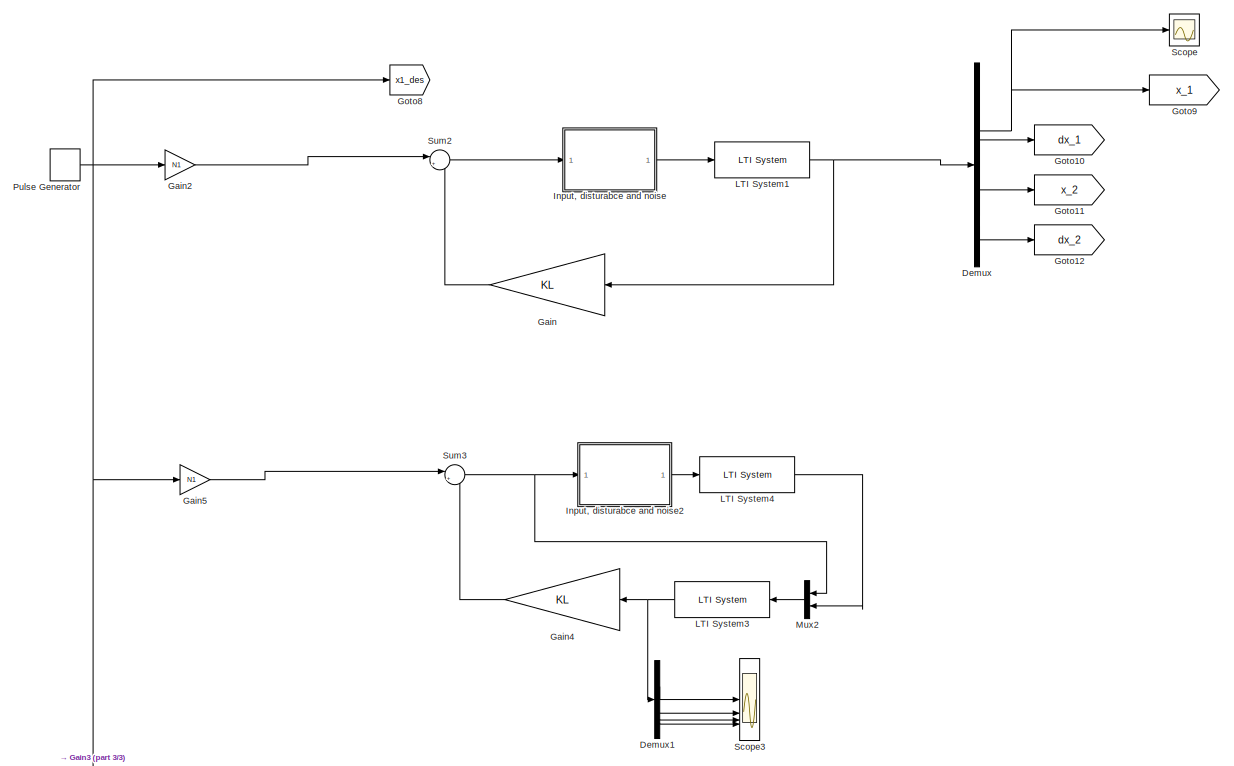
[diagram: root canvas - part 1/3, full width, top band]
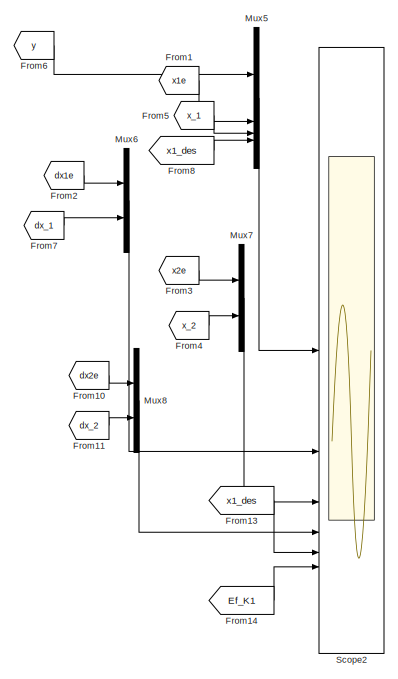
[diagram: root canvas - part 2/3, top right region]
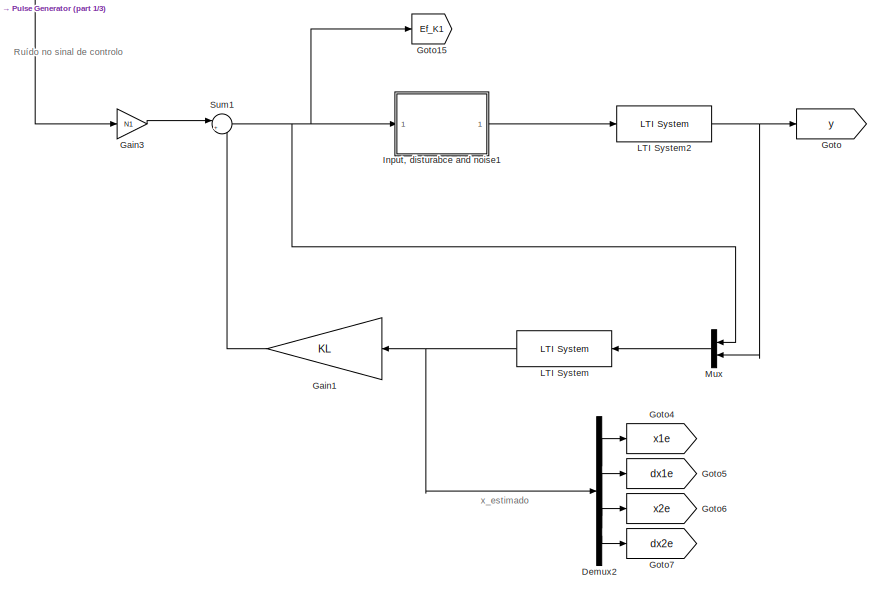
[diagram: root canvas - part 3/3, bottom left region]
MODEL slx_409fb0eced6b
KIND model
CONFIG AbsTol = auto
CONFIG EnableMultiTasking = off
CONFIG FixedStep = auto
CONFIG MaxStep = 0.01
CONFIG MinStep = auto
CONFIG RelTol = 1e-3
CONFIG SampleTimeConstraint = Unconstrained
CONFIG SolverName = VariableStepAuto
CONFIG StartTime = 0.0
CONFIG StopTime = 10
BLOCK [Demux] Demux
BLOCK [Demux] Demux1
BLOCK [Demux] Demux2
BLOCK [From] From1
  GotoTag = x1e
BLOCK [From] From10
  GotoTag = dx2e
BLOCK [From] From11
  GotoTag = dx_2
BLOCK [From] From13
  GotoTag = x1_des
BLOCK [From] From14
  GotoTag = Ef_K1
BLOCK [From] From2
  GotoTag = dx1e
BLOCK [From] From3
  GotoTag = x2e
BLOCK [From] From4
  GotoTag = x_2
BLOCK [From] From5
  GotoTag = x_1
BLOCK [From] From6
  GotoTag = y
BLOCK [From] From7
  GotoTag = dx_1
BLOCK [From] From8
  GotoTag = x1_des
BLOCK [Gain] Gain
  Gain = KL
  Multiplication = Matrix(K*u) (u vector)
  NameLocation = top
BLOCK [Gain] Gain1
  Gain = KL
  Multiplication = Matrix(K*u) (u vector)
  NameLocation = top
BLOCK [Gain] Gain2
  Gain = N1
BLOCK [Gain] Gain3
  Gain = N1
BLOCK [Gain] Gain4
  Gain = KL
  Multiplication = Matrix(K*u) (u vector)
  NameLocation = top
BLOCK [Gain] Gain5
  Gain = N1
BLOCK [Goto] Goto
  GotoTag = y
BLOCK [Goto] Goto10
  GotoTag = dx_1
BLOCK [Goto] Goto11
  GotoTag = x_2
BLOCK [Goto] Goto12
  GotoTag = dx_2
BLOCK [Goto] Goto15
  GotoTag = Ef_K1
BLOCK [Goto] Goto4
  GotoTag = x1e
BLOCK [Goto] Goto5
  GotoTag = dx1e
BLOCK [Goto] Goto6
  GotoTag = x2e
BLOCK [Goto] Goto7
  GotoTag = dx2e
BLOCK [Goto] Goto8
  GotoTag = x1_des
BLOCK [Goto] Goto9
  GotoTag = x_1
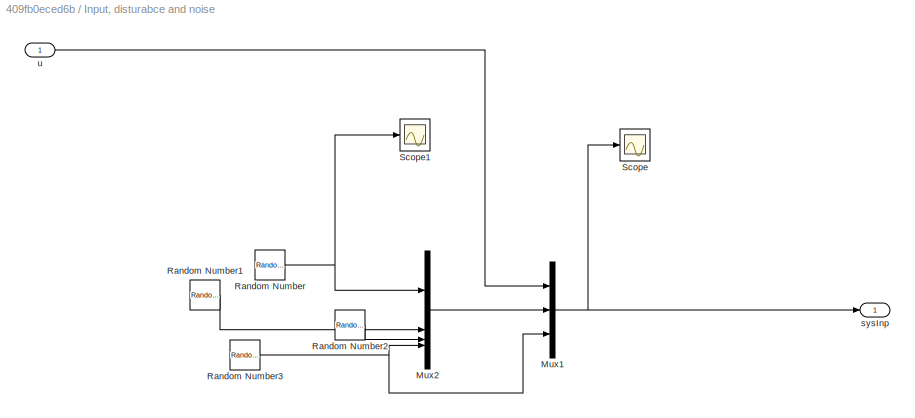
BLOCK [SubSystem] Input, disturabce and noise
BLOCK [Mux] Input, disturabce and noise/Mux1
  DisplayOption = bar
  Inputs = 3
BLOCK [Mux] Input, disturabce and noise/Mux2
  DisplayOption = bar
BLOCK [RandomNumber] Input, disturabce and noise/Random Number
  SampleTime = 0.02
  Variance = noiseVar
BLOCK [RandomNumber] Input, disturabce and noise/Random Number1
  SampleTime = 0.02
  Variance = noiseVar
BLOCK [RandomNumber] Input, disturabce and noise/Random Number2
  SampleTime = 0.02
  Variance = noiseVar
BLOCK [RandomNumber] Input, disturabce and noise/Random Number3
  SampleTime = 0.02
  Variance = noiseVar
BLOCK [Scope] Input, disturabce and noise/Scope
  Floating = off
  NumInputPorts = 1
  ScopeSpecificationString = Simulink.scopes.TimeScopeBlockCfg('CurrentConfiguration', extmgr.ConfigurationSet(extmgr.Configuration('Core','General UI',true),extmgr.Configuration('Core','Source UI',true),extmgr.Configuration('Sources','WiredSimulink',true,'DataLoggingVariableName','ScopeData1'),extmgr.Configuration('Visuals','Time Domain',true,'SerializedDisplays',{struct('MinYLimReal','-48.30284','MaxYLimReal','59.3347','YLa...<+1564ch>
BLOCK [Scope] Input, disturabce and noise/Scope1
  Floating = off
  NumInputPorts = 1
  ScopeSpecificationString = Simulink.scopes.TimeScopeBlockCfg('CurrentConfiguration', extmgr.ConfigurationSet(extmgr.Configuration('Core','General UI',true),extmgr.Configuration('Core','Source UI',true),extmgr.Configuration('Sources','WiredSimulink',true,'DataLoggingVariableName','ScopeData3'),extmgr.Configuration('Visuals','Time Domain',true,'SerializedDisplays',{struct('MinYLimReal','-1.14876','MaxYLimReal','1.25443','YLab...<+1490ch>
BLOCK [Outport] Input, disturabce and noise/sysInp
BLOCK [Inport] Input, disturabce and noise/u
  IconDisplay = Port number and signal name
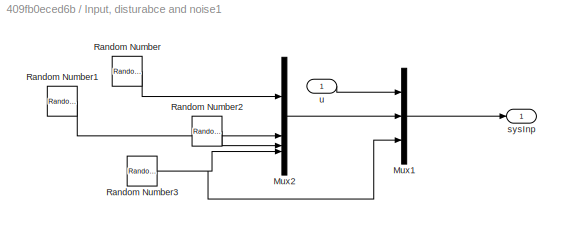
BLOCK [SubSystem] Input, disturabce and noise1
BLOCK [Mux] Input, disturabce and noise1/Mux1
  DisplayOption = bar
  Inputs = 3
BLOCK [Mux] Input, disturabce and noise1/Mux2
  DisplayOption = bar
BLOCK [RandomNumber] Input, disturabce and noise1/Random Number
  SampleTime = 0.02
  Variance = noiseVar
BLOCK [RandomNumber] Input, disturabce and noise1/Random Number1
  SampleTime = 0.02
  Variance = noiseVar
BLOCK [RandomNumber] Input, disturabce and noise1/Random Number2
  SampleTime = 0.02
  Variance = noiseVar
BLOCK [RandomNumber] Input, disturabce and noise1/Random Number3
  SampleTime = 0.02
  Variance = noiseVar
BLOCK [Outport] Input, disturabce and noise1/sysInp
BLOCK [Inport] Input, disturabce and noise1/u
  IconDisplay = Port number and signal name
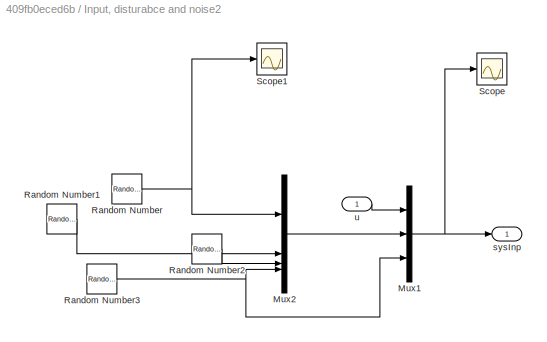
BLOCK [SubSystem] Input, disturabce and noise2
BLOCK [Mux] Input, disturabce and noise2/Mux1
  DisplayOption = bar
  Inputs = 3
BLOCK [Mux] Input, disturabce and noise2/Mux2
  DisplayOption = bar
BLOCK [RandomNumber] Input, disturabce and noise2/Random Number
  SampleTime = 0.02
  Variance = noiseVar
BLOCK [RandomNumber] Input, disturabce and noise2/Random Number1
  SampleTime = 0.02
  Variance = noiseVar
BLOCK [RandomNumber] Input, disturabce and noise2/Random Number2
  SampleTime = 0.02
  Variance = noiseVar
BLOCK [RandomNumber] Input, disturabce and noise2/Random Number3
  SampleTime = 0.02
  Variance = noiseVar
BLOCK [Scope] Input, disturabce and noise2/Scope
  Floating = off
  NumInputPorts = 1
  ScopeSpecificationString = Simulink.scopes.TimeScopeBlockCfg('CurrentConfiguration', extmgr.ConfigurationSet(extmgr.Configuration('Core','General UI',true),extmgr.Configuration('Core','Source UI',true),extmgr.Configuration('Sources','WiredSimulink',true,'DataLoggingVariableName','ScopeData1'),extmgr.Configuration('Visuals','Time Domain',true,'SerializedDisplays',{struct('MinYLimReal','-48.3018','MaxYLimReal','59.32879','YLa...<+1566ch>
BLOCK [Scope] Input, disturabce and noise2/Scope1
  Floating = off
  NumInputPorts = 1
  ScopeSpecificationString = Simulink.scopes.TimeScopeBlockCfg('CurrentConfiguration', extmgr.ConfigurationSet(extmgr.Configuration('Core','General UI',true),extmgr.Configuration('Core','Source UI',true),extmgr.Configuration('Sources','WiredSimulink',true,'DataLoggingVariableName','ScopeData3'),extmgr.Configuration('Visuals','Time Domain',true,'SerializedDisplays',{struct('MinYLimReal','-1.00000','MaxYLimReal','1.00000','YLab...<+1490ch>
BLOCK [Outport] Input, disturabce and noise2/sysInp
BLOCK [Inport] Input, disturabce and noise2/u
  IconDisplay = Port number and signal name
BLOCK [Reference] LTI System  REF=cstblocks/LTI System
  NameLocation = top
  SourceBlock = cstblocks/LTI System
  SourceType = LTI Block
BLOCK [Reference] LTI System1  REF=cstblocks/LTI System
  SourceBlock = cstblocks/LTI System
  SourceType = LTI Block
BLOCK [Reference] LTI System2  REF=cstblocks/LTI System
  SourceBlock = cstblocks/LTI System
  SourceType = LTI Block
BLOCK [Reference] LTI System3  REF=cstblocks/LTI System
  NameLocation = top
  SourceBlock = cstblocks/LTI System
  SourceType = LTI Block
BLOCK [Reference] LTI System4  REF=cstblocks/LTI System
  SourceBlock = cstblocks/LTI System
  SourceType = LTI Block
BLOCK [Mux] Mux
  DisplayOption = bar
  Inputs = 2
  NameLocation = top
BLOCK [Mux] Mux2
  DisplayOption = bar
  Inputs = 2
  NameLocation = top
BLOCK [Mux] Mux5
  DisplayOption = bar
BLOCK [Mux] Mux6
  DisplayOption = bar
  Inputs = 2
BLOCK [Mux] Mux7
  DisplayOption = bar
  Inputs = 2
BLOCK [Mux] Mux8
  DisplayOption = bar
  Inputs = 2
BLOCK [DiscretePulseGenerator] Pulse Generator
  Period = 5
  PhaseDelay = 2
  PulseType = Time based
  PulseWidth = 50
BLOCK [Scope] Scope
  Floating = off
  NumInputPorts = 1
  ScopeSpecificationString = Simulink.scopes.TimeScopeBlockCfg('CurrentConfiguration', extmgr.ConfigurationSet(extmgr.Configuration('Core','General UI',true),extmgr.Configuration('Core','Source UI',true),extmgr.Configuration('Sources','WiredSimulink',true,'DataLoggingVariableName','ScopeData2'),extmgr.Configuration('Visuals','Time Domain',true,'SerializedDisplays',{struct('MinYLimReal','-0.53435','MaxYLimReal','1.53741','YLab...<+1484ch>
BLOCK [Scope] Scope2
  Floating = off
  NumInputPorts = 6
  ScopeSpecificationString = Simulink.scopes.TimeScopeBlockCfg('CurrentConfiguration', extmgr.ConfigurationSet(extmgr.Configuration('Core','General UI',true),extmgr.Configuration('Core','Source UI',true),extmgr.Configuration('Sources','WiredSimulink',true,'DataLoggingVariableName','Data','DataLogging',true,'DataLoggingSaveFormat','StructureWithTime'),extmgr.Configuration('Visuals','Time Domain',true,'SerializedDisplays',{stru...<+7126ch>
BLOCK [Scope] Scope3
  Floating = off
  NumInputPorts = 4
  ScopeSpecificationString = Simulink.scopes.TimeScopeBlockCfg('CurrentConfiguration', extmgr.ConfigurationSet(extmgr.Configuration('Core','General UI',true),extmgr.Configuration('Core','Source UI',true),extmgr.Configuration('Sources','WiredSimulink',true,'DataLoggingVariableName','ScopeData5'),extmgr.Configuration('Visuals','Time Domain',true,'SerializedDisplays',{struct('MinYLimReal','-0.53626','MaxYLimReal','1.53567','YLab...<+3483ch>
BLOCK [Sum] Sum1
  Inputs = |+-
BLOCK [Sum] Sum2
  Inputs = |+-
BLOCK [Sum] Sum3
  Inputs = |+-
ANNOTATION (root): Ruído no sinal de controlo
ANNOTATION (root): x_estimado
LINE Demux1:1 -> Scope3:1
LINE Demux1:2 -> Scope3:2
LINE Demux1:3 -> Scope3:3
LINE Demux1:4 -> Scope3:4
LINE Demux2:1 -> Goto4:1
LINE Demux2:2 -> Goto5:1
LINE Demux2:3 -> Goto6:1
LINE Demux2:4 -> Goto7:1
NET Demux:1 -> Goto9:1, Scope:1
LINE Demux:2 -> Goto10:1
LINE Demux:3 -> Goto11:1
LINE Demux:4 -> Goto12:1
LINE From10:1 -> Mux8:1
LINE From11:1 -> Mux8:2
LINE From13:1 -> Scope2:5
LINE From14:1 -> Scope2:6
LINE From1:1 -> Mux5:2
LINE From2:1 -> Mux6:1
LINE From3:1 -> Mux7:1
LINE From4:1 -> Mux7:2
LINE From5:1 -> Mux5:3
LINE From6:1 -> Mux5:1
LINE From7:1 -> Mux6:2
LINE From8:1 -> Mux5:4
LINE Gain1:1 -> Sum1:2
LINE Gain2:1 -> Sum2:1
LINE Gain3:1 -> Sum1:1
LINE Gain4:1 -> Sum3:2
LINE Gain5:1 -> Sum3:1
LINE Gain:1 -> Sum2:2
NET Input, disturabce and noise/Mux1:1 -> Input, disturabce and noise/Scope:1, Input, disturabce and noise/sysInp:1
LINE Input, disturabce and noise/Mux2:1 -> Input, disturabce and noise/Mux1:2
LINE Input, disturabce and noise/Random Number1:1 -> Input, disturabce and noise/Mux2:2
LINE Input, disturabce and noise/Random Number2:1 -> Input, disturabce and noise/Mux2:3
NET Input, disturabce and noise/Random Number3:1 -> Input, disturabce and noise/Mux1:3, Input, disturabce and noise/Mux2:4
NET Input, disturabce and noise/Random Number:1 -> Input, disturabce and noise/Mux2:1, Input, disturabce and noise/Scope1:1
LINE Input, disturabce and noise/u:1 -> Input, disturabce and noise/Mux1:1
LINE Input, disturabce and noise1/Mux1:1 -> Input, disturabce and noise1/sysInp:1
LINE Input, disturabce and noise1/Mux2:1 -> Input, disturabce and noise1/Mux1:2
LINE Input, disturabce and noise1/Random Number1:1 -> Input, disturabce and noise1/Mux2:2
LINE Input, disturabce and noise1/Random Number2:1 -> Input, disturabce and noise1/Mux2:3
NET Input, disturabce and noise1/Random Number3:1 -> Input, disturabce and noise1/Mux1:3, Input, disturabce and noise1/Mux2:4
LINE Input, disturabce and noise1/Random Number:1 -> Input, disturabce and noise1/Mux2:1
LINE Input, disturabce and noise1/u:1 -> Input, disturabce and noise1/Mux1:1
LINE Input, disturabce and noise1:1 -> LTI System2:1
NET Input, disturabce and noise2/Mux1:1 -> Input, disturabce and noise2/Scope:1, Input, disturabce and noise2/sysInp:1
LINE Input, disturabce and noise2/Mux2:1 -> Input, disturabce and noise2/Mux1:2
LINE Input, disturabce and noise2/Random Number1:1 -> Input, disturabce and noise2/Mux2:2
LINE Input, disturabce and noise2/Random Number2:1 -> Input, disturabce and noise2/Mux2:3
NET Input, disturabce and noise2/Random Number3:1 -> Input, disturabce and noise2/Mux1:3, Input, disturabce and noise2/Mux2:4
NET Input, disturabce and noise2/Random Number:1 -> Input, disturabce and noise2/Mux2:1, Input, disturabce and noise2/Scope1:1
LINE Input, disturabce and noise2/u:1 -> Input, disturabce and noise2/Mux1:1
LINE Input, disturabce and noise2:1 -> LTI System4:1
LINE Input, disturabce and noise:1 -> LTI System1:1
NET LTI System1:1 -> Demux:1, Gain:1
NET LTI System2:1 -> Goto:1, Mux:2
NET LTI System3:1 -> Demux1:1, Gain4:1
LINE LTI System4:1 -> Mux2:2
NET LTI System:1 -> Demux2:1, Gain1:1
LINE Mux2:1 -> LTI System3:1
LINE Mux5:1 -> Scope2:1
LINE Mux6:1 -> Scope2:2
LINE Mux7:1 -> Scope2:3
LINE Mux8:1 -> Scope2:4
LINE Mux:1 -> LTI System:1
NET Pulse Generator:1 -> Gain2:1, Gain3:1, Gain5:1, Goto8:1
NET Sum1:1 -> Goto15:1, Input, disturabce and noise1:1, Mux:1
LINE Sum2:1 -> Input, disturabce and noise:1
NET Sum3:1 -> Input, disturabce and noise2:1, Mux2:1
note: NET lines group one-source signal fan-out (src -> all destinations, sorted); 1:1 wires keep LINE
